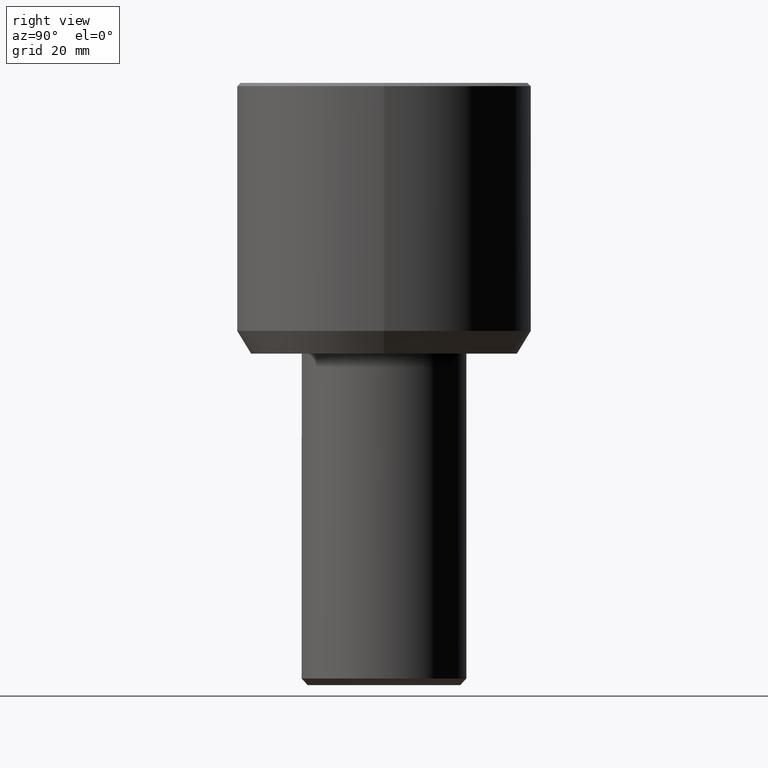
[diagram: clean part render]
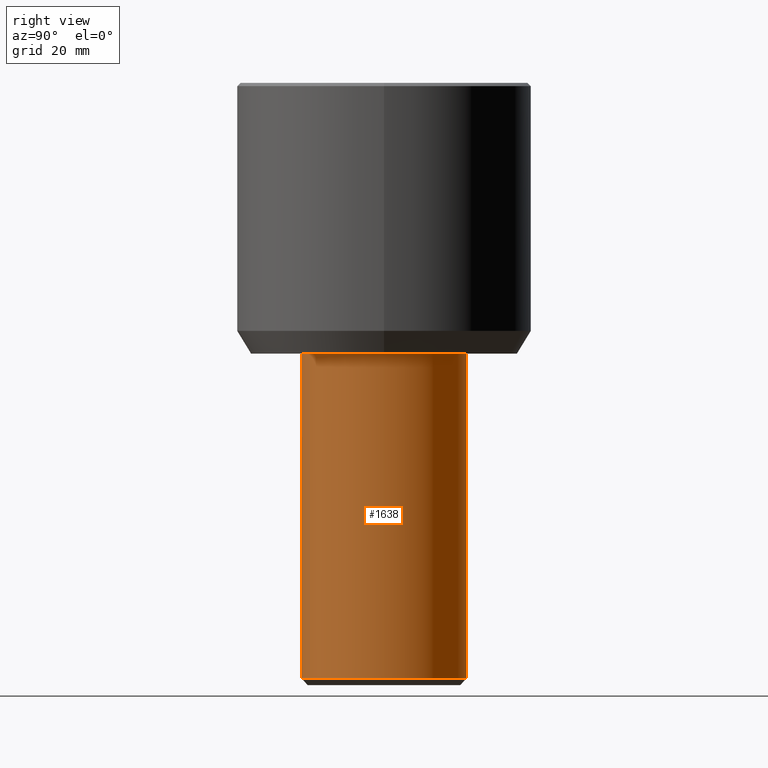
[diagram: same view with one face highlighted and labeled with its STEP entity id]
A machine part, right view. The second image highlights one B-rep face of the part: STEP entity #1638.
In plain terms, the highlighted cylindrical surface (bore or boss wall) has radius 25.395 mm, axis along (-0, -0, 1).
Its self-contained STEP definition (entity closure, byte-faithful):
#6 = CARTESIAN_POINT ( 'NONE',  ( -22.23000000000000043, -12.27734193545169994, -89.59999999999998010 ) ) ;
#36 = VERTEX_POINT ( 'NONE', #1395 ) ;
#62 = DIRECTION ( 'NONE',  ( -0.0000000000000000000, -0.0000000000000000000, 1.000000000000000000 ) ) ;
#194 = LINE ( 'NONE', #1692, #1122 ) ;
#239 = ORIENTED_EDGE ( 'NONE', *, *, #525, .T. ) ;
#443 = CARTESIAN_POINT ( 'NONE',  ( -22.22999999999999687, -12.27734193545166974, -182.5999999999999943 ) ) ;
#452 = DIRECTION ( 'NONE',  ( 1.000000000000000000, 0.0000000000000000000, 0.0000000000000000000 ) ) ;
#454 = EDGE_CURVE ( 'NONE', #1544, #956, #730, .T. ) ;
#525 = EDGE_CURVE ( 'NONE', #36, #36, #1154, .T. ) ;
#528 = CYLINDRICAL_SURFACE ( 'NONE', #1460, 25.39499999999999957 ) ;
#602 = DIRECTION ( 'NONE',  ( -0.0000000000000000000, -0.0000000000000000000, 1.000000000000000000 ) ) ;
#644 = DIRECTION ( 'NONE',  ( -1.000000000000000000, 0.0000000000000000000, 0.0000000000000000000 ) ) ;
#678 = DIRECTION ( 'NONE',  ( -0.0000000000000000000, -0.0000000000000000000, -1.000000000000000000 ) ) ;
#699 =( BOUNDED_CURVE ( )  B_SPLINE_CURVE ( 3, ( #1153, #1000, #1659, #6 ),
 .UNSPECIFIED., .F., .F. ) 
 B_SPLINE_CURVE_WITH_KNOTS ( ( 4, 4 ),
 ( 5.778587871580770141, 6.787782742778403211 ),
 .UNSPECIFIED. ) 
 CURVE ( )  GEOMETRIC_REPRESENTATION_ITEM ( )  RATIONAL_B_SPLINE_CURVE ( ( 1.000000000000000000, 0.9169127781059259741, 0.9169127781059259741, 1.000000000000000000 ) ) 
 REPRESENTATION_ITEM ( '' )  );
#730 = CIRCLE ( 'NONE', #2131, 25.39499999999999957 ) ;
#748 = CARTESIAN_POINT ( 'NONE',  ( 0.0000000000000000000, 0.0000000000000000000, -184.5999999999999943 ) ) ;
#755 = DIRECTION ( 'NONE',  ( 0.0000000000000000000, 0.0000000000000000000, -1.000000000000000000 ) ) ;
#757 = CARTESIAN_POINT ( 'NONE',  ( -22.23000000000000043, 12.27734193545167152, -89.59999999999998010 ) ) ;
#773 = EDGE_LOOP ( 'NONE', ( #1162, #802, #1182, #1854 ) ) ;
#802 = ORIENTED_EDGE ( 'NONE', *, *, #1967, .T. ) ;
#858 = LINE ( 'NONE', #1875, #1821 ) ;
#956 = VERTEX_POINT ( 'NONE', #1060 ) ;
#979 = CARTESIAN_POINT ( 'NONE',  ( -22.23000000000000043, -12.27734193545169994, -89.59999999999998010 ) ) ;
#1000 = CARTESIAN_POINT ( 'NONE',  ( -26.54560017178442166, 4.463289649284881477, -85.28439982821552690 ) ) ;
#1060 = CARTESIAN_POINT ( 'NONE',  ( -22.22999999999999687, 12.27734193545166974, -182.5999999999999943 ) ) ;
#1109 = EDGE_CURVE ( 'NONE', #1449, #1544, #858, .T. ) ;
#1122 = VECTOR ( 'NONE', #62, 1000.000000000000000 ) ;
#1153 = CARTESIAN_POINT ( 'NONE',  ( -22.23000000000000043, 12.27734193545167152, -89.59999999999998010 ) ) ;
#1154 = CIRCLE ( 'NONE', #1999, 25.39499999999999957 ) ;
#1162 = ORIENTED_EDGE ( 'NONE', *, *, #454, .T. ) ;
#1182 = ORIENTED_EDGE ( 'NONE', *, *, #1340, .T. ) ;
#1209 = EDGE_LOOP ( 'NONE', ( #239 ) ) ;
#1340 = EDGE_CURVE ( 'NONE', #1576, #1449, #699, .T. ) ;
#1395 = CARTESIAN_POINT ( 'NONE',  ( -25.39499999999999957, 0.0000000000000000000, -82.90000000000000568 ) ) ;
#1449 = VERTEX_POINT ( 'NONE', #979 ) ;
#1460 = AXIS2_PLACEMENT_3D ( 'NONE', #748, #602, #452 ) ;
#1514 = CARTESIAN_POINT ( 'NONE',  ( 0.0000000000000000000, 0.0000000000000000000, -82.90000000000000568 ) ) ;
#1544 = VERTEX_POINT ( 'NONE', #443 ) ;
#1576 = VERTEX_POINT ( 'NONE', #757 ) ;
#1638 = ADVANCED_FACE ( 'NONE', ( #2018, #1974 ), #528, .T. ) ;
#1659 = CARTESIAN_POINT ( 'NONE',  ( -26.54560017178441811, -4.463289649284899241, -85.28439982821552690 ) ) ;
#1692 = CARTESIAN_POINT ( 'NONE',  ( -22.22999999999998977, 12.27734193545168218, -184.5999999999999943 ) ) ;
#1821 = VECTOR ( 'NONE', #755, 1000.000000000000000 ) ;
#1833 = DIRECTION ( 'NONE',  ( 0.0000000000000000000, 0.0000000000000000000, 1.000000000000000000 ) ) ;
#1854 = ORIENTED_EDGE ( 'NONE', *, *, #1109, .T. ) ;
#1875 = CARTESIAN_POINT ( 'NONE',  ( -22.22999999999998977, -12.27734193545168218, -184.5999999999999943 ) ) ;
#1967 = EDGE_CURVE ( 'NONE', #956, #1576, #194, .T. ) ;
#1974 = FACE_OUTER_BOUND ( 'NONE', #1209, .T. ) ;
#1999 = AXIS2_PLACEMENT_3D ( 'NONE', #1514, #678, #644 ) ;
#2001 = CARTESIAN_POINT ( 'NONE',  ( 0.0000000000000000000, 0.0000000000000000000, -182.5999999999999943 ) ) ;
#2018 = FACE_OUTER_BOUND ( 'NONE', #773, .T. ) ;
#2020 = DIRECTION ( 'NONE',  ( -1.000000000000000000, 0.0000000000000000000, 0.0000000000000000000 ) ) ;
#2131 = AXIS2_PLACEMENT_3D ( 'NONE', #2001, #1833, #2020 ) ;